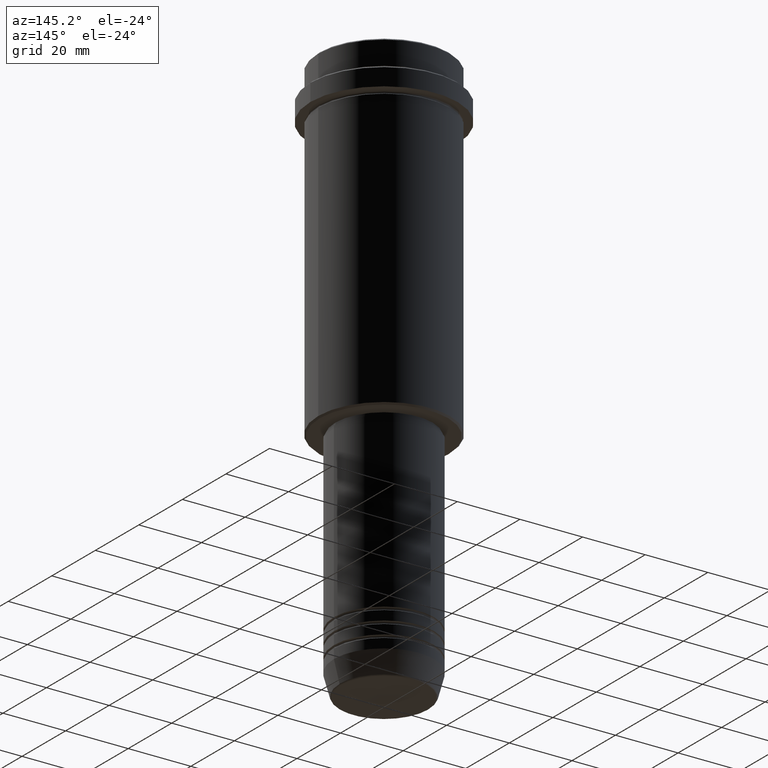
[diagram: clean part render]
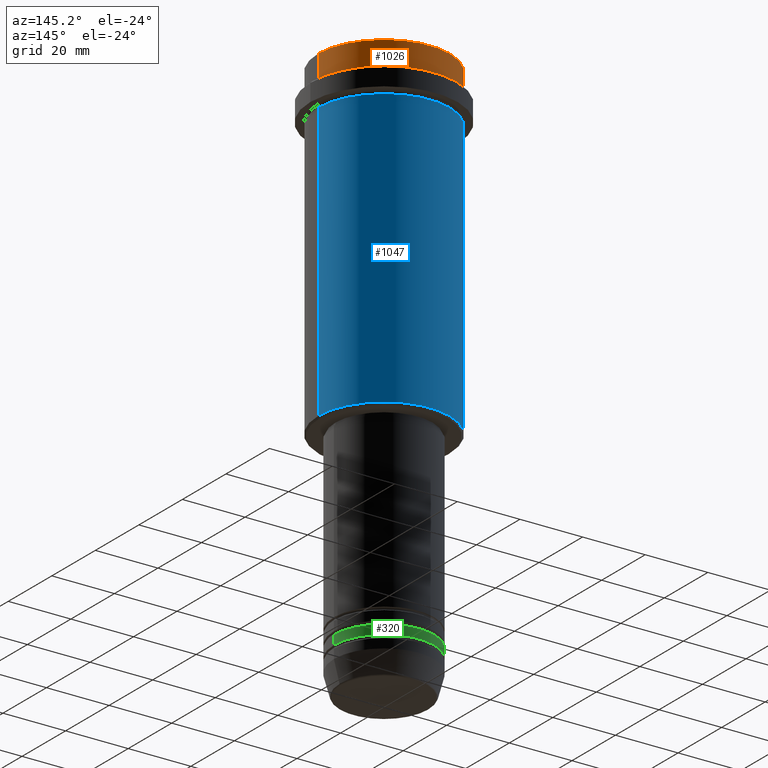
[diagram: same view with three faces highlighted in distinct colors, each labeled with its STEP entity id]
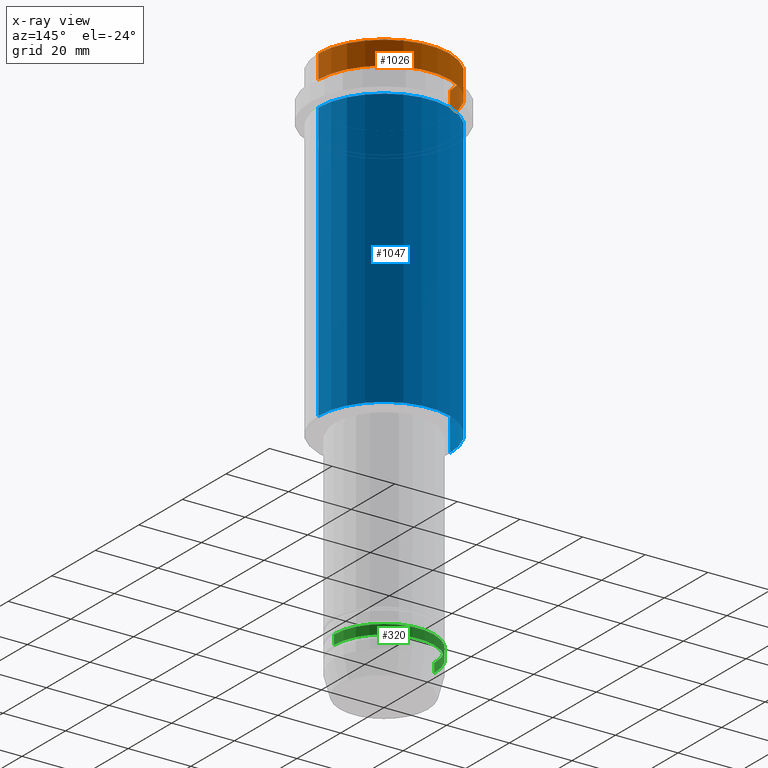
[diagram: x-ray of the same camera — body ghosted, the three highlighted faces saturated]
A machine part, auxiliary view with three faces highlighted in distinct colors.
The next image is the same camera in x-ray (body ghosted, the three faces saturated) — at least one of them is partly hidden behind the body in this view.
Their STEP definitions:

[orange] entity #1026 — the highlighted cylindrical surface (partial cylindrical patch) has radius 21 mm, axis along (-0, -0, 1).
#63 = LINE ( 'NONE', #723, #72 ) ;
#72 = VECTOR ( 'NONE', #1068, 1000.000000000000000 ) ;
#84 = DIRECTION ( 'NONE',  ( -0.000000000000000000, -0.000000000000000000, 1.000000000000000000 ) ) ;
#119 = VECTOR ( 'NONE', #1243, 1000.000000000000000 ) ;
#124 = VERTEX_POINT ( 'NONE', #311 ) ;
#151 = CARTESIAN_POINT ( 'NONE',  ( 21.00000000000000000, 0.000000000000000000, 0.000000000000000000 ) ) ;
#169 = FACE_OUTER_BOUND ( 'NONE', #336, .T. ) ;
#170 = EDGE_CURVE ( 'NONE', #1080, #124, #275, .T. ) ;
#176 = DIRECTION ( 'NONE',  ( 1.000000000000000000, 0.000000000000000000, 0.000000000000000000 ) ) ;
#197 = CARTESIAN_POINT ( 'NONE',  ( 0.000000000000000000, 0.000000000000000000, -0.5000000000000108802 ) ) ;
#238 = ORIENTED_EDGE ( 'NONE', *, *, #170, .T. ) ;
#255 = AXIS2_PLACEMENT_3D ( 'NONE', #1051, #677, #954 ) ;
#275 = CIRCLE ( 'NONE', #1148, 21.00000000000000000 ) ;
#306 = CARTESIAN_POINT ( 'NONE',  ( 21.00000000000000000, 0.000000000000000000, -7.999999999999998224 ) ) ;
#311 = CARTESIAN_POINT ( 'NONE',  ( 21.00000000000000000, 0.000000000000000000, -0.5000000000000108802 ) ) ;
#336 = EDGE_LOOP ( 'NONE', ( #1197, #1092, #238, #1028 ) ) ;
#386 = LINE ( 'NONE', #151, #119 ) ;
#441 = EDGE_CURVE ( 'NONE', #1072, #124, #386, .T. ) ;
#456 = CIRCLE ( 'NONE', #874, 21.00000000000000000 ) ;
#563 = EDGE_CURVE ( 'NONE', #1072, #626, #456, .T. ) ;
#610 = EDGE_CURVE ( 'NONE', #626, #1080, #63, .T. ) ;
#626 = VERTEX_POINT ( 'NONE', #1238 ) ;
#628 = DIRECTION ( 'NONE',  ( 0.000000000000000000, 0.000000000000000000, -1.000000000000000000 ) ) ;
#677 = DIRECTION ( 'NONE',  ( -0.000000000000000000, -0.000000000000000000, 1.000000000000000000 ) ) ;
#723 = CARTESIAN_POINT ( 'NONE',  ( -21.00000000000000000, 2.571758278209441661E-15, 0.000000000000000000 ) ) ;
#874 = AXIS2_PLACEMENT_3D ( 'NONE', #1058, #84, #176 ) ;
#934 = CYLINDRICAL_SURFACE ( 'NONE', #255, 21.00000000000000000 ) ;
#954 = DIRECTION ( 'NONE',  ( 1.000000000000000000, 0.000000000000000000, 0.000000000000000000 ) ) ;
#1026 = ADVANCED_FACE ( 'NONE', ( #169 ), #934, .T. ) ;
#1028 = ORIENTED_EDGE ( 'NONE', *, *, #441, .F. ) ;
#1051 = CARTESIAN_POINT ( 'NONE',  ( 0.000000000000000000, 0.000000000000000000, 0.000000000000000000 ) ) ;
#1058 = CARTESIAN_POINT ( 'NONE',  ( 0.000000000000000000, 0.000000000000000000, -7.999999999999998224 ) ) ;
#1068 = DIRECTION ( 'NONE',  ( -0.000000000000000000, -0.000000000000000000, 1.000000000000000000 ) ) ;
#1072 = VERTEX_POINT ( 'NONE', #306 ) ;
#1080 = VERTEX_POINT ( 'NONE', #1181 ) ;
#1092 = ORIENTED_EDGE ( 'NONE', *, *, #610, .T. ) ;
#1148 = AXIS2_PLACEMENT_3D ( 'NONE', #197, #628, #1381 ) ;
#1181 = CARTESIAN_POINT ( 'NONE',  ( -21.00000000000000000, 2.571758278209441661E-15, -0.5000000000000108802 ) ) ;
#1197 = ORIENTED_EDGE ( 'NONE', *, *, #563, .T. ) ;
#1238 = CARTESIAN_POINT ( 'NONE',  ( -21.00000000000000000, 2.571758278209441661E-15, -7.999999999999998224 ) ) ;
#1243 = DIRECTION ( 'NONE',  ( -0.000000000000000000, -0.000000000000000000, 1.000000000000000000 ) ) ;
#1381 = DIRECTION ( 'NONE',  ( 1.000000000000000000, 0.000000000000000000, 0.000000000000000000 ) ) ;

[blue] entity #1047 — the highlighted cylindrical surface (partial cylindrical patch) has radius 21 mm, axis along (-0, -0, 1).
#25 = VERTEX_POINT ( 'NONE', #1371 ) ;
#66 = DIRECTION ( 'NONE',  ( -0.000000000000000000, -0.000000000000000000, 1.000000000000000000 ) ) ;
#126 = DIRECTION ( 'NONE',  ( 1.000000000000000000, 0.000000000000000000, 0.000000000000000000 ) ) ;
#140 = VECTOR ( 'NONE', #699, 1000.000000000000000 ) ;
#188 = AXIS2_PLACEMENT_3D ( 'NONE', #510, #726, #1389 ) ;
#230 = VECTOR ( 'NONE', #755, 1000.000000000000000 ) ;
#267 = CARTESIAN_POINT ( 'NONE',  ( -21.00000000000000000, 2.571758278209441661E-15, 0.000000000000000000 ) ) ;
#273 = EDGE_CURVE ( 'NONE', #884, #25, #774, .T. ) ;
#279 = EDGE_CURVE ( 'NONE', #25, #1324, #301, .T. ) ;
#290 = VERTEX_POINT ( 'NONE', #1112 ) ;
#301 = CIRCLE ( 'NONE', #752, 21.00000000000000000 ) ;
#314 = CARTESIAN_POINT ( 'NONE',  ( 21.00000000000000000, 0.000000000000000000, -104.4999999999999858 ) ) ;
#416 = CARTESIAN_POINT ( 'NONE',  ( 0.000000000000000000, 0.000000000000000000, 0.000000000000000000 ) ) ;
#434 = CARTESIAN_POINT ( 'NONE',  ( 0.000000000000000000, 0.000000000000000000, -16.00000000000000355 ) ) ;
#510 = CARTESIAN_POINT ( 'NONE',  ( 0.000000000000000000, 0.000000000000000000, -104.4999999999999858 ) ) ;
#539 = CARTESIAN_POINT ( 'NONE',  ( 21.00000000000000000, 0.000000000000000000, 0.000000000000000000 ) ) ;
#629 = FACE_OUTER_BOUND ( 'NONE', #769, .T. ) ;
#667 = DIRECTION ( 'NONE',  ( -0.000000000000000000, -0.000000000000000000, 1.000000000000000000 ) ) ;
#699 = DIRECTION ( 'NONE',  ( -0.000000000000000000, -0.000000000000000000, 1.000000000000000000 ) ) ;
#720 = DIRECTION ( 'NONE',  ( 1.000000000000000000, 0.000000000000000000, 0.000000000000000000 ) ) ;
#726 = DIRECTION ( 'NONE',  ( -0.000000000000000000, -0.000000000000000000, 1.000000000000000000 ) ) ;
#752 = AXIS2_PLACEMENT_3D ( 'NONE', #434, #667, #126 ) ;
#755 = DIRECTION ( 'NONE',  ( -0.000000000000000000, -0.000000000000000000, 1.000000000000000000 ) ) ;
#756 = AXIS2_PLACEMENT_3D ( 'NONE', #416, #66, #720 ) ;
#760 = EDGE_CURVE ( 'NONE', #290, #1324, #1160, .T. ) ;
#769 = EDGE_LOOP ( 'NONE', ( #879, #1006, #1228, #788 ) ) ;
#774 = LINE ( 'NONE', #539, #230 ) ;
#788 = ORIENTED_EDGE ( 'NONE', *, *, #273, .F. ) ;
#846 = CYLINDRICAL_SURFACE ( 'NONE', #756, 21.00000000000000000 ) ;
#879 = ORIENTED_EDGE ( 'NONE', *, *, #1050, .T. ) ;
#884 = VERTEX_POINT ( 'NONE', #314 ) ;
#1006 = ORIENTED_EDGE ( 'NONE', *, *, #760, .T. ) ;
#1039 = CARTESIAN_POINT ( 'NONE',  ( -21.00000000000000000, 2.571758278209441661E-15, -16.00000000000000355 ) ) ;
#1042 = CIRCLE ( 'NONE', #188, 21.00000000000000000 ) ;
#1047 = ADVANCED_FACE ( 'NONE', ( #629 ), #846, .T. ) ;
#1050 = EDGE_CURVE ( 'NONE', #884, #290, #1042, .T. ) ;
#1112 = CARTESIAN_POINT ( 'NONE',  ( -21.00000000000000000, 2.571758278209441661E-15, -104.4999999999999858 ) ) ;
#1160 = LINE ( 'NONE', #267, #140 ) ;
#1228 = ORIENTED_EDGE ( 'NONE', *, *, #279, .F. ) ;
#1324 = VERTEX_POINT ( 'NONE', #1039 ) ;
#1371 = CARTESIAN_POINT ( 'NONE',  ( 21.00000000000000000, 0.000000000000000000, -16.00000000000000355 ) ) ;
#1389 = DIRECTION ( 'NONE',  ( -1.000000000000000000, 0.000000000000000000, 0.000000000000000000 ) ) ;

[green] entity #320 — the highlighted cylindrical surface (partial cylindrical patch) has radius 16 mm, axis along (-0, -0, 1).
#18 = DIRECTION ( 'NONE',  ( -0.000000000000000000, -0.000000000000000000, 1.000000000000000000 ) ) ;
#20 = ORIENTED_EDGE ( 'NONE', *, *, #890, .T. ) ;
#64 = EDGE_CURVE ( 'NONE', #1390, #1316, #1213, .T. ) ;
#65 = DIRECTION ( 'NONE',  ( -0.000000000000000000, -0.000000000000000000, 1.000000000000000000 ) ) ;
#98 = CIRCLE ( 'NONE', #1064, 16.00000000000000000 ) ;
#145 = VECTOR ( 'NONE', #1211, 1000.000000000000000 ) ;
#295 = ORIENTED_EDGE ( 'NONE', *, *, #870, .F. ) ;
#320 = ADVANCED_FACE ( 'NONE', ( #554 ), #895, .T. ) ;
#340 = ORIENTED_EDGE ( 'NONE', *, *, #1275, .F. ) ;
#354 = DIRECTION ( 'NONE',  ( 1.000000000000000000, 0.000000000000000000, 0.000000000000000000 ) ) ;
#395 = CARTESIAN_POINT ( 'NONE',  ( -16.00000000000000000, 1.959434878635765131E-15, -165.9999999999999147 ) ) ;
#444 = LINE ( 'NONE', #768, #145 ) ;
#471 = CARTESIAN_POINT ( 'NONE',  ( 16.00000000000000000, 0.000000000000000000, -168.9999999999999147 ) ) ;
#472 = ORIENTED_EDGE ( 'NONE', *, *, #64, .T. ) ;
#495 = DIRECTION ( 'NONE',  ( 1.000000000000000000, 0.000000000000000000, 0.000000000000000000 ) ) ;
#554 = FACE_OUTER_BOUND ( 'NONE', #1078, .T. ) ;
#583 = CARTESIAN_POINT ( 'NONE',  ( 0.000000000000000000, 0.000000000000000000, -168.9999999999999147 ) ) ;
#607 = DIRECTION ( 'NONE',  ( -0.000000000000000000, -0.000000000000000000, 1.000000000000000000 ) ) ;
#632 = DIRECTION ( 'NONE',  ( 1.000000000000000000, 0.000000000000000000, 0.000000000000000000 ) ) ;
#683 = CARTESIAN_POINT ( 'NONE',  ( -16.00000000000000000, 1.959434878635765131E-15, -168.9999999999999147 ) ) ;
#721 = CARTESIAN_POINT ( 'NONE',  ( 0.000000000000000000, 0.000000000000000000, -165.9999999999999147 ) ) ;
#768 = CARTESIAN_POINT ( 'NONE',  ( 16.00000000000000000, 0.000000000000000000, 0.000000000000000000 ) ) ;
#806 = VERTEX_POINT ( 'NONE', #395 ) ;
#835 = CARTESIAN_POINT ( 'NONE',  ( 16.00000000000000000, 0.000000000000000000, -165.9999999999999147 ) ) ;
#843 = VERTEX_POINT ( 'NONE', #835 ) ;
#870 = EDGE_CURVE ( 'NONE', #843, #806, #98, .T. ) ;
#890 = EDGE_CURVE ( 'NONE', #1316, #806, #956, .T. ) ;
#895 = CYLINDRICAL_SURFACE ( 'NONE', #1313, 16.00000000000000000 ) ;
#956 = LINE ( 'NONE', #1073, #1292 ) ;
#1064 = AXIS2_PLACEMENT_3D ( 'NONE', #721, #1276, #632 ) ;
#1073 = CARTESIAN_POINT ( 'NONE',  ( -16.00000000000000000, 1.959434878635765131E-15, 0.000000000000000000 ) ) ;
#1078 = EDGE_LOOP ( 'NONE', ( #472, #20, #295, #340 ) ) ;
#1211 = DIRECTION ( 'NONE',  ( -0.000000000000000000, -0.000000000000000000, 1.000000000000000000 ) ) ;
#1213 = CIRCLE ( 'NONE', #1239, 16.00000000000000000 ) ;
#1239 = AXIS2_PLACEMENT_3D ( 'NONE', #583, #65, #495 ) ;
#1275 = EDGE_CURVE ( 'NONE', #1390, #843, #444, .T. ) ;
#1276 = DIRECTION ( 'NONE',  ( -0.000000000000000000, -0.000000000000000000, 1.000000000000000000 ) ) ;
#1292 = VECTOR ( 'NONE', #607, 1000.000000000000000 ) ;
#1313 = AXIS2_PLACEMENT_3D ( 'NONE', #1414, #18, #354 ) ;
#1316 = VERTEX_POINT ( 'NONE', #683 ) ;
#1390 = VERTEX_POINT ( 'NONE', #471 ) ;
#1414 = CARTESIAN_POINT ( 'NONE',  ( 0.000000000000000000, 0.000000000000000000, 0.000000000000000000 ) ) ;